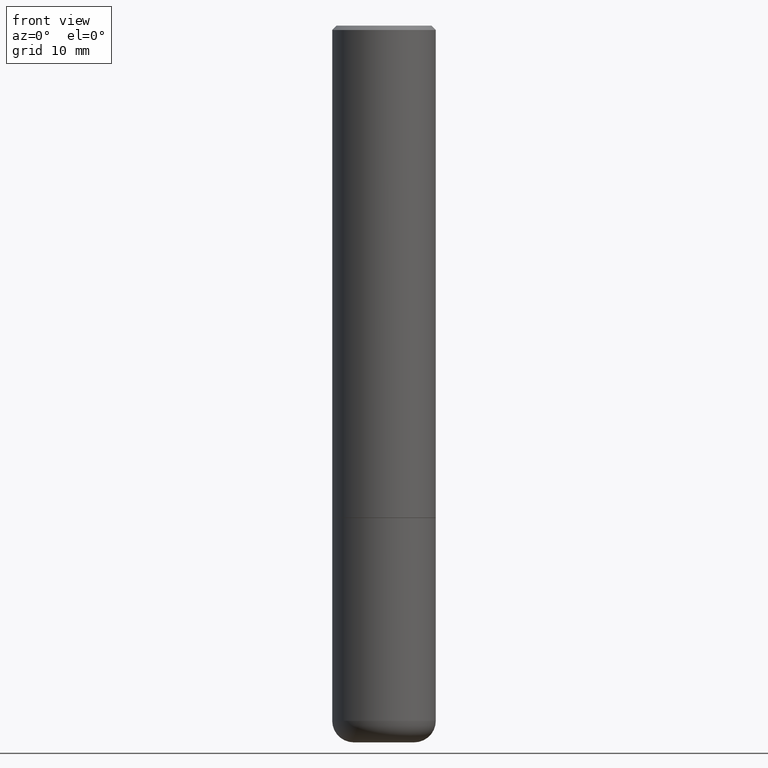
[diagram: clean part render]
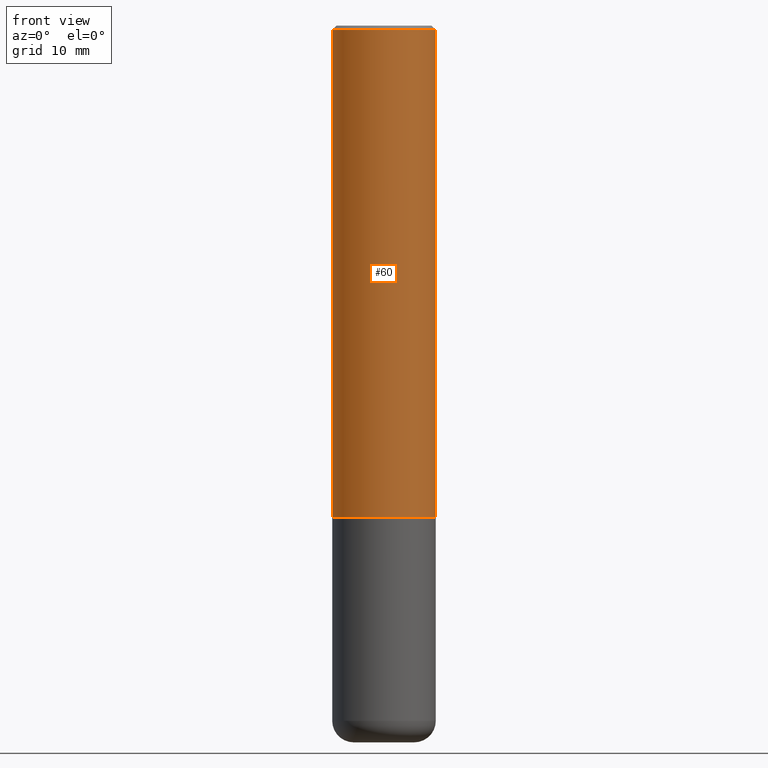
[diagram: same view with one face highlighted and labeled with its STEP entity id]
A machine part, front view. The second image highlights one B-rep face of the part: STEP entity #60.
In plain terms, the highlighted cylindrical surface (partial cylindrical patch) has radius 5.9995 mm, axis along (-0, 0, 1).
Its self-contained STEP definition (entity closure, byte-faithful):
#4 = FACE_OUTER_BOUND ( 'NONE', #275, .T. ) ;
#9 = ORIENTED_EDGE ( 'NONE', *, *, #218, .T. ) ;
#28 = CARTESIAN_POINT ( 'NONE',  ( 4.890937612370285420E-31, -6.982962677686308865E-17, -0.02000000000000005246 ) ) ;
#32 = LINE ( 'NONE', #94, #129 ) ;
#48 = VERTEX_POINT ( 'NONE', #92 ) ;
#60 = ADVANCED_FACE ( 'NONE', ( #4 ), #334, .T. ) ;
#65 = DIRECTION ( 'NONE',  ( -2.445468806185136877E-29, 3.491481338843145188E-15, 1.000000000000000000 ) ) ;
#66 = CARTESIAN_POINT ( 'NONE',  ( 0.2361999999999999933, -1.690279253850498771E-15, -0.02000000000000005246 ) ) ;
#81 = VERTEX_POINT ( 'NONE', #66 ) ;
#92 = CARTESIAN_POINT ( 'NONE',  ( -0.2361999999999999933, 1.579546157692633030E-15, -0.02000000000000005246 ) ) ;
#94 = CARTESIAN_POINT ( 'NONE',  ( 0.2362000000000001321, -1.649375784469497117E-15, 1.151752954443000789E-29 ) ) ;
#97 = EDGE_CURVE ( 'NONE', #354, #81, #32, .T. ) ;
#120 = VECTOR ( 'NONE', #65, 39.37007874015748143 ) ;
#124 = CIRCLE ( 'NONE', #338, 0.2361999999999999933 ) ;
#128 = DIRECTION ( 'NONE',  ( -2.445468806185136877E-29, 3.491481338843145188E-15, 1.000000000000000000 ) ) ;
#129 = VECTOR ( 'NONE', #128, 39.37007874015748143 ) ;
#133 = DIRECTION ( 'NONE',  ( -2.445468806185136597E-29, 3.491481338843145583E-15, 1.000000000000000000 ) ) ;
#145 = CARTESIAN_POINT ( 'NONE',  ( -0.2362000000000002986, -2.272483767102600582E-15, -2.243100000000000094 ) ) ;
#174 = ORIENTED_EDGE ( 'NONE', *, *, #97, .T. ) ;
#186 = DIRECTION ( 'NONE',  ( -2.445468806185136597E-29, 3.491481338843145583E-15, 1.000000000000000000 ) ) ;
#193 = CARTESIAN_POINT ( 'NONE',  ( 5.485431079153880270E-29, -7.831741791159060910E-15, -2.243100000000000094 ) ) ;
#199 = EDGE_CURVE ( 'NONE', #48, #81, #124, .T. ) ;
#203 = EDGE_CURVE ( 'NONE', #404, #48, #414, .T. ) ;
#204 = CARTESIAN_POINT ( 'NONE',  ( 0.2362000000000002709, -9.481117575628559013E-15, -2.243100000000000094 ) ) ;
#218 = EDGE_CURVE ( 'NONE', #404, #354, #250, .T. ) ;
#226 = AXIS2_PLACEMENT_3D ( 'NONE', #193, #386, #228 ) ;
#228 = DIRECTION ( 'NONE',  ( 1.000000000000000000, -6.982962677686269077E-15, 0.000000000000000000 ) ) ;
#239 = ORIENTED_EDGE ( 'NONE', *, *, #199, .F. ) ;
#250 = CIRCLE ( 'NONE', #226, 0.2362000000000002709 ) ;
#258 = CARTESIAN_POINT ( 'NONE',  ( 0.000000000000000000, 0.000000000000000000, 0.000000000000000000 ) ) ;
#275 = EDGE_LOOP ( 'NONE', ( #333, #9, #174, #239 ) ) ;
#280 = AXIS2_PLACEMENT_3D ( 'NONE', #258, #133, #360 ) ;
#284 = DIRECTION ( 'NONE',  ( 1.000000000000000000, -6.982962677686266711E-15, 0.000000000000000000 ) ) ;
#333 = ORIENTED_EDGE ( 'NONE', *, *, #203, .F. ) ;
#334 = CYLINDRICAL_SURFACE ( 'NONE', #280, 0.2362000000000001321 ) ;
#338 = AXIS2_PLACEMENT_3D ( 'NONE', #28, #186, #284 ) ;
#354 = VERTEX_POINT ( 'NONE', #204 ) ;
#360 = DIRECTION ( 'NONE',  ( 1.000000000000000000, -6.982962677686266711E-15, 4.876176775795936353E-29 ) ) ;
#385 = CARTESIAN_POINT ( 'NONE',  ( -0.2362000000000001321, 1.678301941865357577E-15, -1.161852468318209457E-29 ) ) ;
#386 = DIRECTION ( 'NONE',  ( -2.445468806185136597E-29, 3.491481338843145583E-15, 1.000000000000000000 ) ) ;
#404 = VERTEX_POINT ( 'NONE', #145 ) ;
#414 = LINE ( 'NONE', #385, #120 ) ;